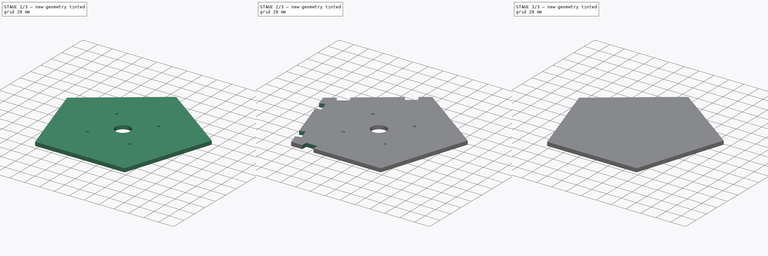
[diagram: build sequence overview — one tinted view per stage of 3, left to right]
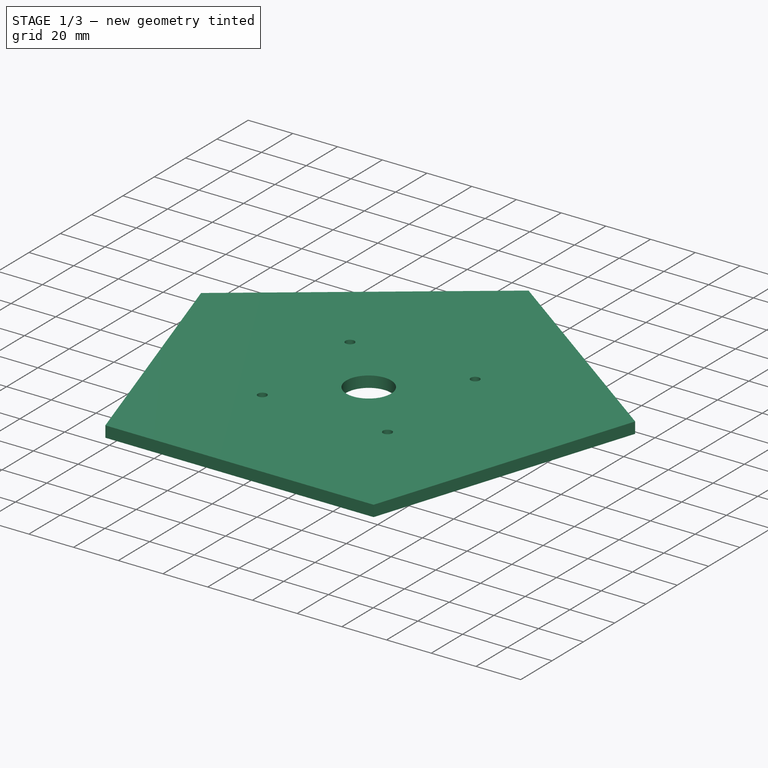
[diagram: stage 1 of 3 — iso view after this stage's code; geometry added in this stage tinted green]
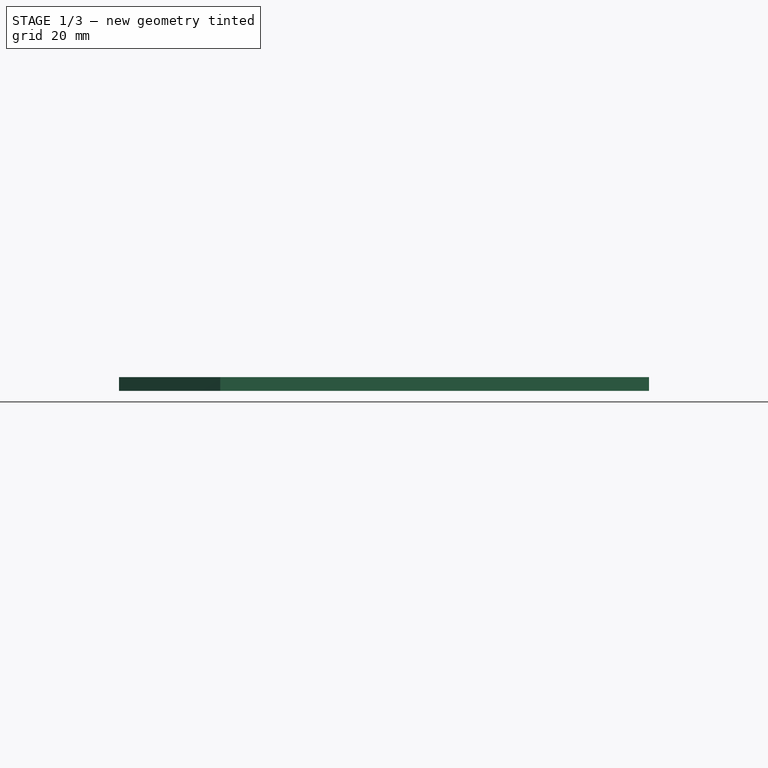
[diagram: stage 1 of 3 — front view after this stage's code; geometry added in this stage tinted green]
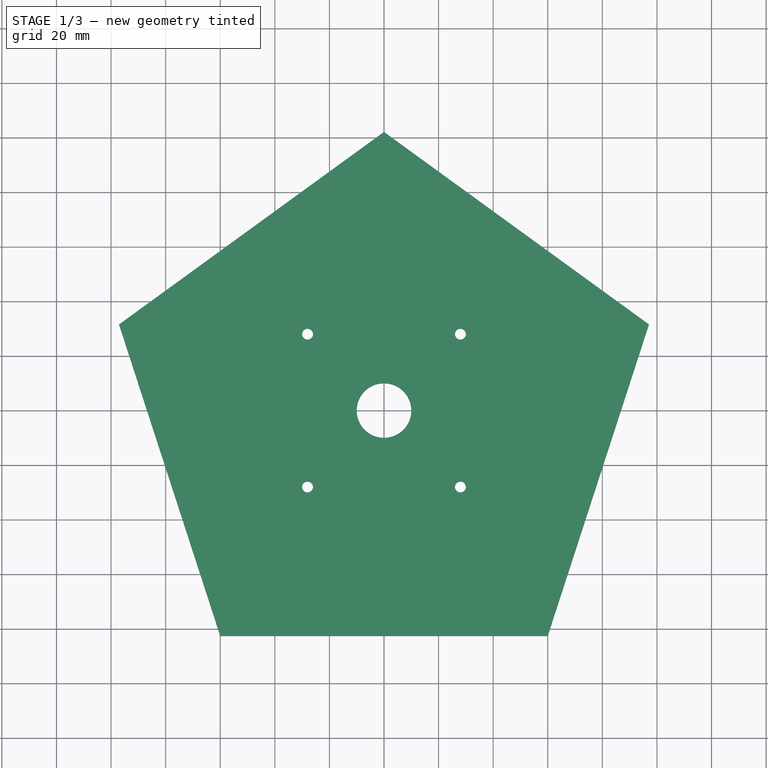
[diagram: stage 1 of 3 — top view after this stage's code; geometry added in this stage tinted green]
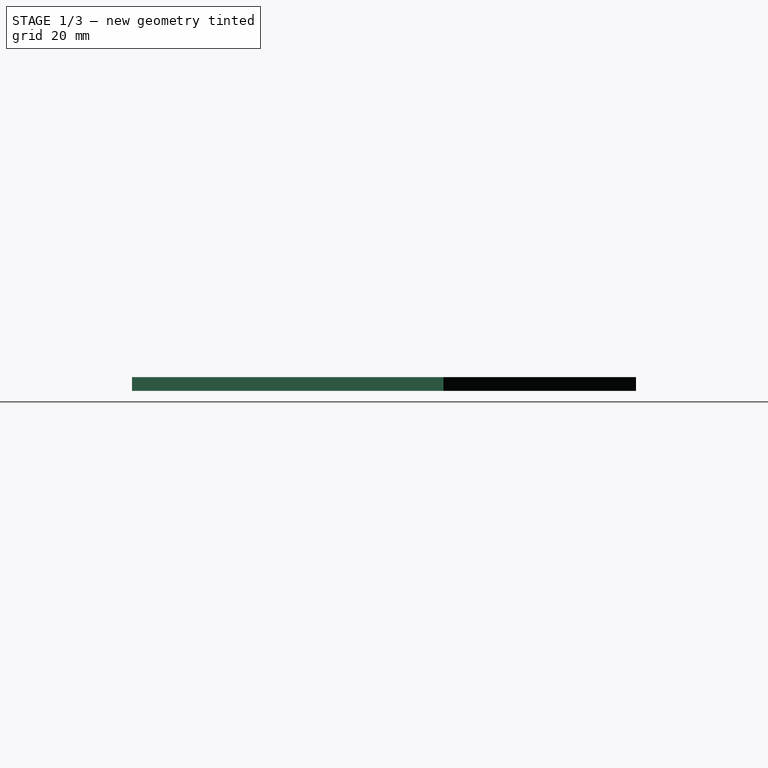
[diagram: stage 1 of 3 — right view after this stage's code; geometry added in this stage tinted green]
FCSTD DOCUMENT  (FreeCAD 0.15R4671 (Git))
Label: basV2
License: All rights reserved
LicenseURL: http://fr.wikipedia.org/wiki/<copyright redacted>
objects: Sketcher::SketchObject×5, PartDesign::Mirrored×3, PartDesign::Pocket×2, PartDesign::Pad×1, PartDesign::MultiTransform×1, App::MeasureDistance×1
note: 15 computed .brp shape members not serialized (recipe doc carries the construction recipe); baked Part::Feature solids carry a one-line shape summary decoded from their .brp

FEATURE [Sketcher::SketchObject] Sketch001  label="centerHole"
  Placement = pos=(0,0,5) rot=(0,0,1;0rad)
  Support = -> Pad [Face7]
  sketch-geometry (1):
    g0: Circle CenterX=0 CenterY=0 CenterZ=0 NormalX=0 NormalY=0 NormalZ=1 Radius=10
  constraints (2):
    c: Coincident(g0,g-1)
    c: Radius(g0) = 10
FEATURE [Sketcher::SketchObject] Sketch002  label="screwhole"
  Placement = pos=(0,0,5) rot=(0,0,1;0rad)
  sketch-geometry (1):
    g0: Circle CenterX=-28 CenterY=28 CenterZ=0 NormalX=0 NormalY=0 NormalZ=1 Radius=2
  constraints (3):
    c: Radius(g0) = 2
    c: DistanceX(g-1,g0) = -28
    c: DistanceY(g-1,g0) = 28
FEATURE [PartDesign::Pocket] Pocket001
  Length = 5
  Sketch = -> Sketch002
  Type = 1
FEATURE [PartDesign::Mirrored] Mirrored
  MirrorPlane = -> Sketch002 [V_Axis]
FEATURE [PartDesign::Mirrored] Mirrored001
  MirrorPlane = -> Sketch002 [H_Axis]
FEATURE [PartDesign::MultiTransform] MultiTransform  label="screwHoles"
  Originals = -> [Pocket001]
  Transformations = -> [Mirrored,Mirrored001]
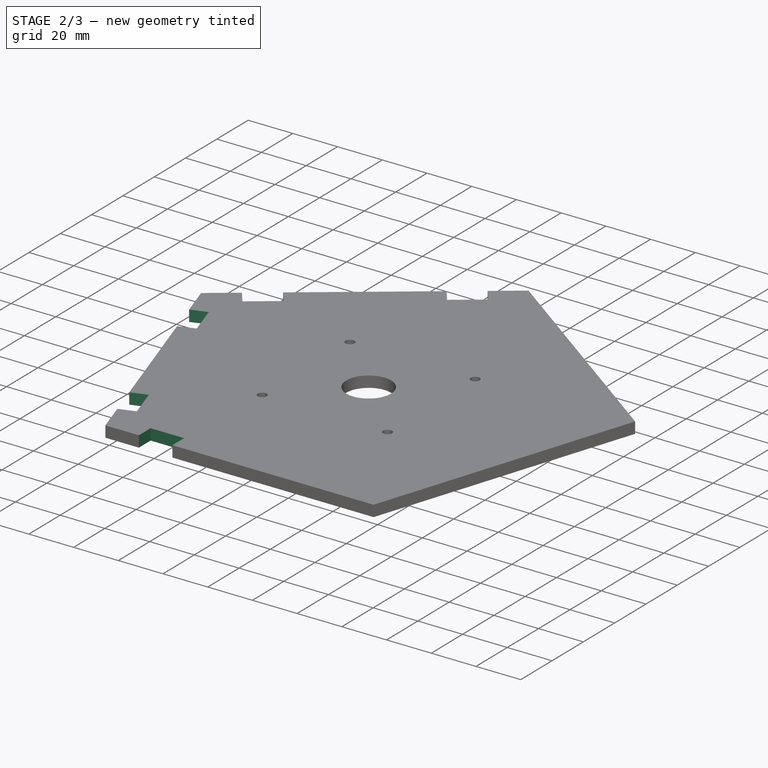
[diagram: stage 2 of 3 — iso view after this stage's code; geometry added in this stage tinted green]
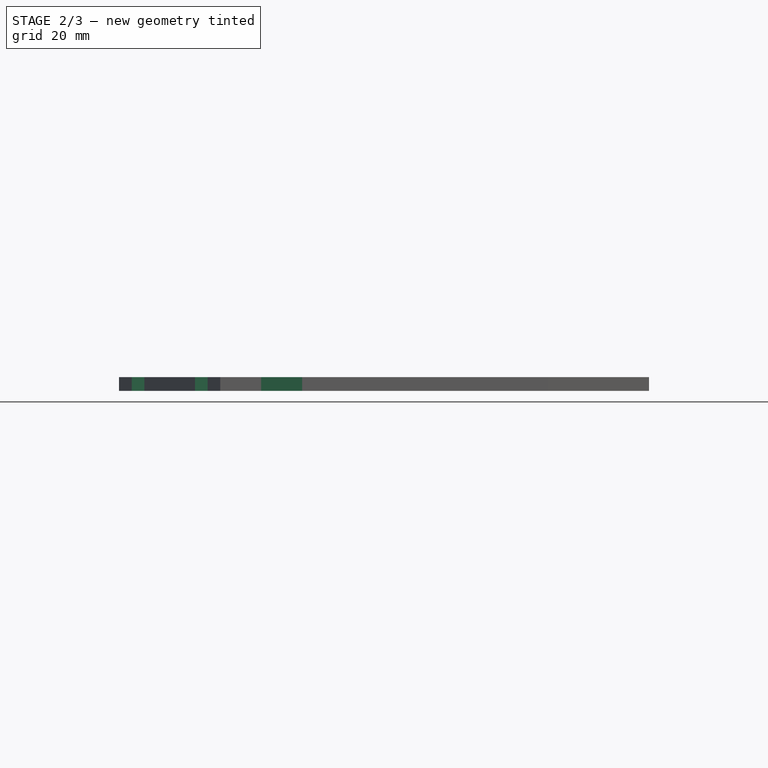
[diagram: stage 2 of 3 — front view after this stage's code; geometry added in this stage tinted green]
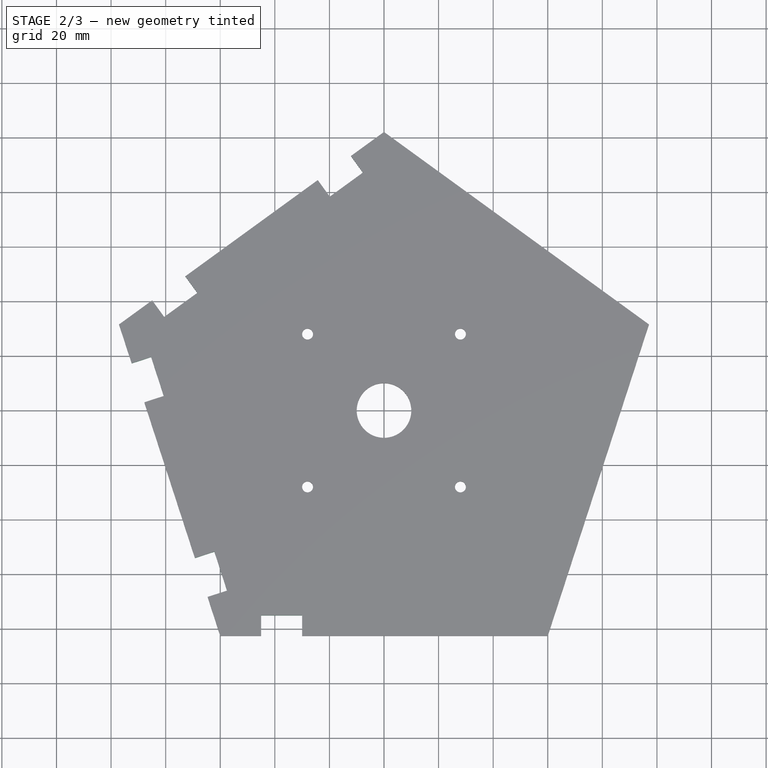
[diagram: stage 2 of 3 — top view after this stage's code; geometry added in this stage tinted green]
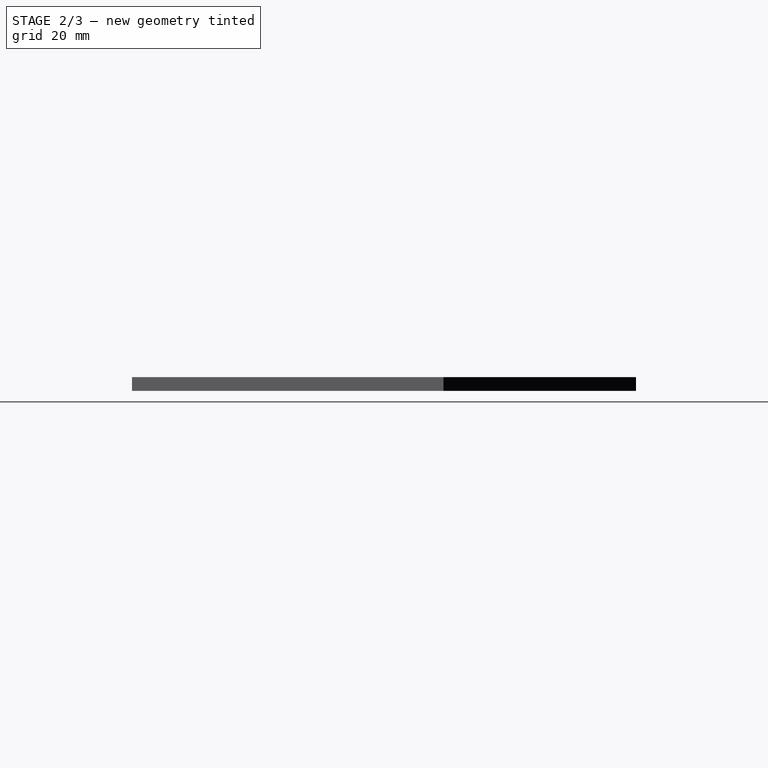
[diagram: stage 2 of 3 — right view after this stage's code; geometry added in this stage tinted green]
FEATURE [Sketcher::SketchObject] Sketch003
  ExternalGeometry = -> [MultiTransform]
  Placement = pos=(0,0,5) rot=(0,0,1;0rad)
  Support = -> MultiTransform [Face5]
  sketch-geometry (23):
    g0: LineSegment StartX=-84.9468 StartY=40.3606 StartZ=0 EndX=-72.8115 EndY=49.1774 EndZ=0
    g1: LineSegment StartX=-72.8115 StartY=49.1774 StartZ=0 EndX=-68.4031 EndY=43.1098 EndZ=0
    g2: LineSegment StartX=-68.4031 StartY=43.1098 StartZ=0 EndX=-80.5384 EndY=34.293 EndZ=0
    g3: LineSegment StartX=-80.5384 StartY=34.293 StartZ=0 EndX=-84.9468 EndY=40.3606 EndZ=0
    g4: LineSegment [constr] StartX=0 StartY=0 StartZ=0 EndX=-48.541 EndY=66.811 EndZ=0
    g5: LineSegment [constr] StartX=0 StartY=0 StartZ=0 EndX=-97.082 EndY=31.5439 EndZ=0
    g6: LineSegment [constr] StartX=0 StartY=0 StartZ=0 EndX=-60 EndY=-82.5829 EndZ=0
    g7: LineSegment StartX=-12.1353 StartY=93.2613 StartZ=0 EndX=-7.72687 EndY=87.1937 EndZ=0
    g8: LineSegment StartX=-7.72687 StartY=87.1937 StartZ=0 EndX=-19.8621 EndY=78.3769 EndZ=0
    g9: LineSegment StartX=-19.8621 StartY=78.3769 StartZ=0 EndX=-24.2705 EndY=84.4445 EndZ=0
    g10: LineSegment StartX=-12.1353 StartY=93.2613 StartZ=0 EndX=-24.2705 EndY=84.4445 EndZ=0
    g11: LineSegment StartX=-92.4468 StartY=17.278 StartZ=0 EndX=-85.3139 EndY=19.5956 EndZ=0
    g12: LineSegment StartX=-85.3139 StartY=19.5956 StartZ=0 EndX=-80.6786 EndY=5.3298 EndZ=0
    g13: LineSegment StartX=-80.6786 StartY=5.3298 StartZ=0 EndX=-87.8115 EndY=3.01217 EndZ=0
    g14: LineSegment StartX=-87.8115 StartY=3.01217 StartZ=0 EndX=-92.4468 EndY=17.278 EndZ=0
    g15: LineSegment StartX=-69.2705 StartY=-54.0512 StartZ=0 EndX=-62.1376 EndY=-51.7336 EndZ=0
    g16: LineSegment StartX=-62.1376 StartY=-51.7336 StartZ=0 EndX=-57.5023 EndY=-65.9994 EndZ=0
    g17: LineSegment StartX=-57.5023 StartY=-65.9994 StartZ=0 EndX=-64.6353 EndY=-68.3171 EndZ=0
    g18: LineSegment StartX=-64.6353 StartY=-68.3171 StartZ=0 EndX=-69.2705 EndY=-54.0512 EndZ=0
    g19: LineSegment StartX=-45 StartY=-82.5829 StartZ=0 EndX=-45 EndY=-75.0829 EndZ=0
    g20: LineSegment StartX=-45 StartY=-75.0829 StartZ=0 EndX=-30 EndY=-75.0829 EndZ=0
    g21: LineSegment StartX=-30 StartY=-75.0829 StartZ=0 EndX=-30 EndY=-82.5829 EndZ=0
    g22: LineSegment StartX=-30 StartY=-82.5829 StartZ=0 EndX=-45 EndY=-82.5829 EndZ=0
  constraints (67):
    c: Coincident(g0,g1)
    c: Coincident(g1,g2)
    c: Coincident(g2,g3)
    c: Coincident(g3,g0)
    c: Parallel(g0,g2)
    c: Parallel(g2,g-3)
    c: Perpendicular(g1,g0)
    c: Perpendicular(g3,g0)
    c: PointOnObject(g0,g-3)
    c: Distance(g2) = 15
    c: Distance(g3) = 7.5
    c: Distance(g-3,g0) = 15
    c: Perpendicular(g-3,g4)
    c: Coincident(g4,g-1)
    c: PointOnObject(g4,g-3)
    c: Coincident(g5,g-3)
    c: Coincident(g5,g-1)
    c: Coincident(g6,g-4)
    c: Coincident(g6,g-1)
    c: Coincident(g7,g8)
    c: Coincident(g8,g9)
    c: Parallel(g7,g9)
    c: Parallel(g8,g-3)
    c: PointOnObject(g7,g-3)
    c: Equal(g9,g7)
    c: Perpendicular(g8,g7)
    c: Equal(g8,g2)
    c: Equal(g9,g1)
    c: Distance(g-3,g7) = 15
    c: Coincident(g10,g7)
    c: Coincident(g9,g10)
    c: Coincident(g11,g12)
    c: Coincident(g12,g13)
    c: Coincident(g13,g14)
    c: Parallel(g12,g14)
    c: Parallel(g14,g-5)
    c: Parallel(g11,g13)
    c: Perpendicular(g12,g11)
    c: Equal(g12,g2)
    c: Equal(g11,g1)
    c: Coincident(g14,g11)
    c: PointOnObject(g11,g-5)
    c: Distance(g11,g5) = 15
    c: Coincident(g15,g16)
    c: Coincident(g16,g17)
    c: Coincident(g17,g18)
    c: Coincident(g18,g15)
    c: Parallel(g15,g17)
    c: Parallel(g16,g18)
    c: Parallel(g18,g-5)
    c: Perpendicular(g16,g17)
    c: Equal(g13,g15)
    c: Equal(g12,g16)
    c: PointOnObject(g17,g-5)
    c: Distance(g17,g6) = 15
    c: Vertical(g19)
    c: Coincident(g19,g20)
    c: Coincident(g20,g21)
    c: Vertical(g21)
    c: Coincident(g21,g22)
    c: Coincident(g22,g19)
    c: Horizontal(g20)
    c: Horizontal(g22)
    c: PointOnObject(g21,g-6)
    c: Equal(g19,g15)
    c: Equal(g20,g16)
    c: Distance(g6,g19) = 15
FEATURE [PartDesign::Pocket] Pocket002
  Length = 5
  Sketch = -> Sketch003
  Type = 0
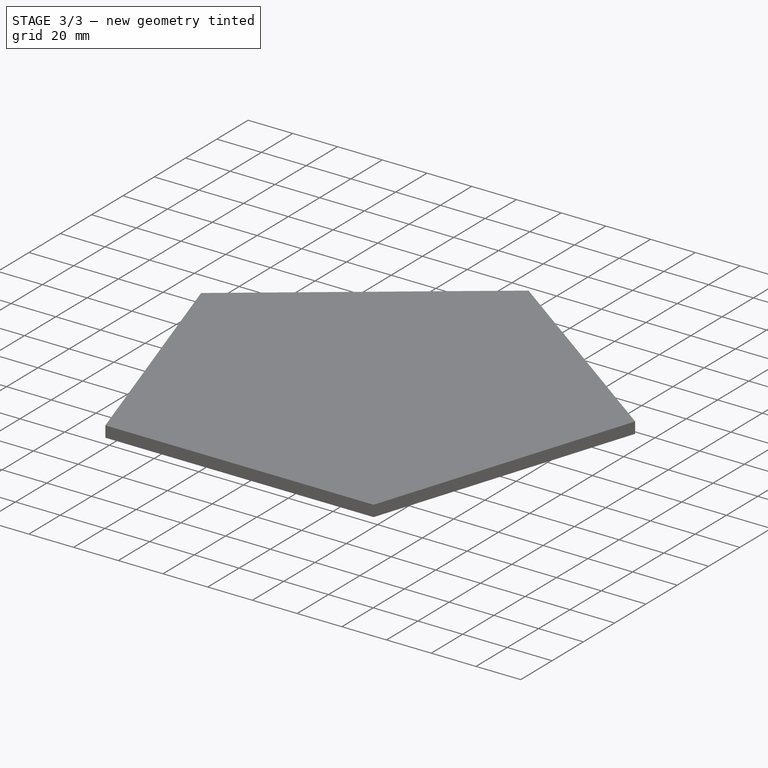
[diagram: stage 3 of 3 — iso view after this stage's code; geometry added in this stage tinted green]
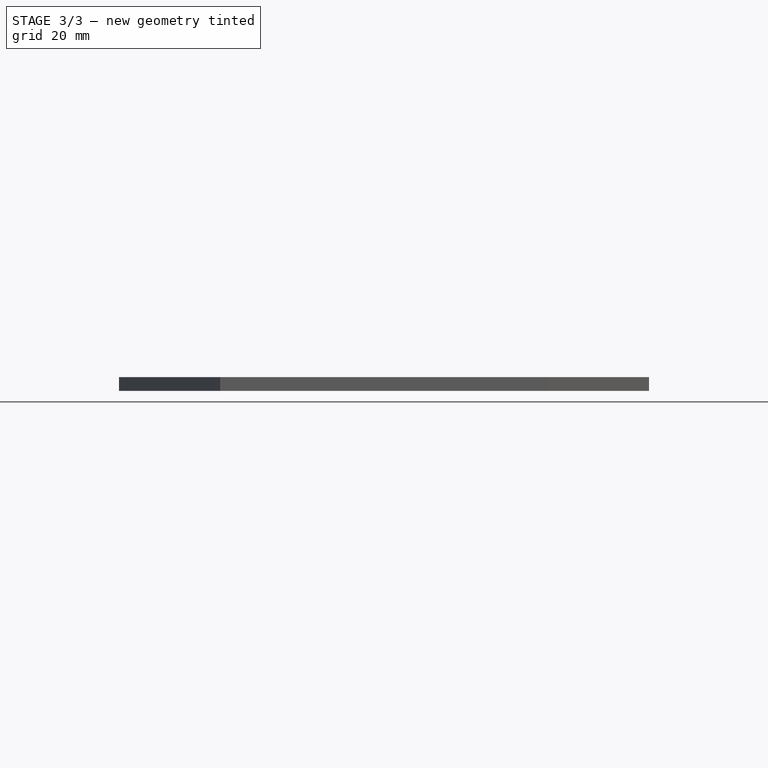
[diagram: stage 3 of 3 — front view after this stage's code; geometry added in this stage tinted green]
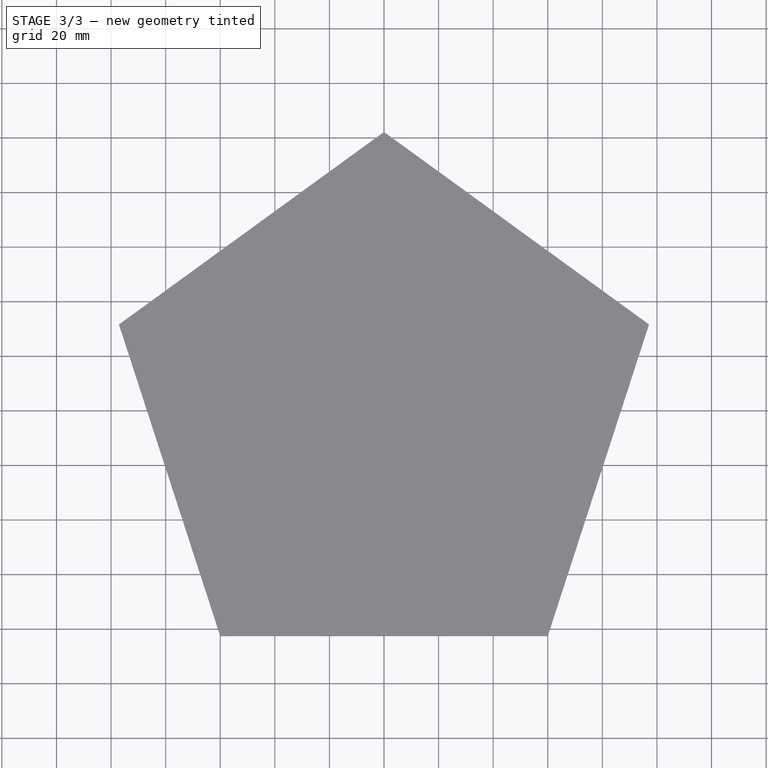
[diagram: stage 3 of 3 — top view after this stage's code; geometry added in this stage tinted green]
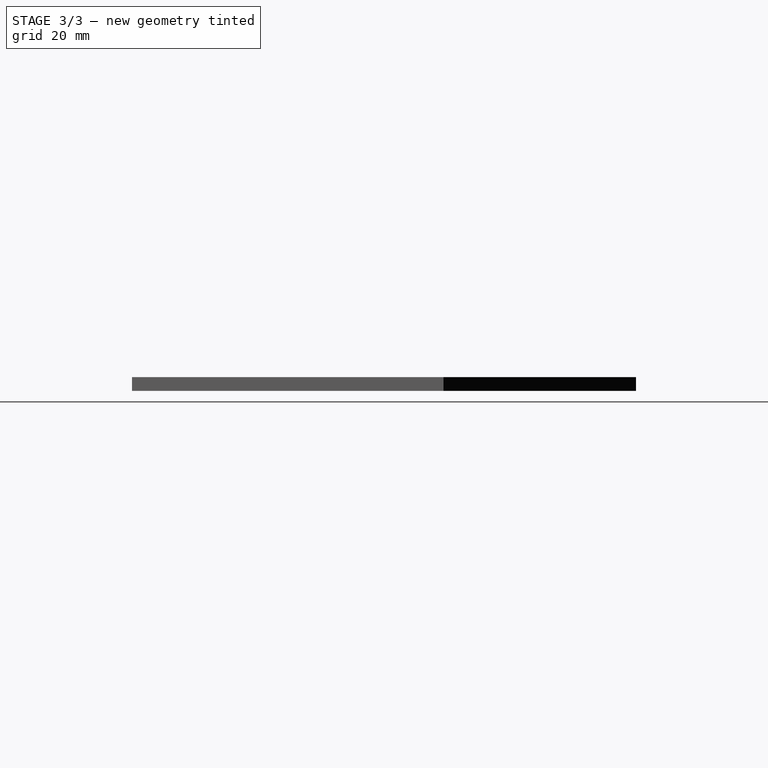
[diagram: stage 3 of 3 — right view after this stage's code; geometry added in this stage tinted green]
FEATURE [Sketcher::SketchObject] Sketch  label="pentagone"
  sketch-geometry (6):
    g0: LineSegment StartX=0 StartY=102.078 StartZ=0 EndX=-97.082 EndY=31.5439 EndZ=0
    g1: LineSegment StartX=-97.082 StartY=31.5439 StartZ=0 EndX=-60 EndY=-82.5829 EndZ=0
    g2: LineSegment StartX=-60 StartY=-82.5829 StartZ=0 EndX=60 EndY=-82.5829 EndZ=0
    g3: LineSegment StartX=60 StartY=-82.5829 StartZ=0 EndX=97.082 EndY=31.5439 EndZ=0
    g4: LineSegment StartX=97.082 StartY=31.5439 StartZ=0 EndX=0 EndY=102.078 EndZ=0
    g5: Circle [constr] CenterX=0 CenterY=0 CenterZ=0 NormalX=0 NormalY=0 NormalZ=1 Radius=102.078
  constraints (15):
    c: Coincident(g0,g1)
    c: Coincident(g1,g2)
    c: Coincident(g2,g3)
    c: Coincident(g3,g4)
    c: Coincident(g4,g0)
    c: Equal(g0, g1-g4) x4
    c: PointOnObject(g0,g5)
    c: PointOnObject(g1,g5)
    c: PointOnObject(g2,g5)
    c: PointOnObject(g3,g5)
    c: PointOnObject(g4,g5)
    c: Coincident(g2,g-1)
    c: Coincident(g-1,g5)
    c: Distance(g0) = 120
    c: PointOnObject(g0,g-2)
FEATURE [PartDesign::Pad] Pad  label="pentagonePad"
  Length = 5
  Length2 = 100
  Sketch = -> Sketch
  Type = 0
FEATURE [PartDesign::Mirrored] Mirrored002
  MirrorPlane = -> Sketch003 [V_Axis]
  Originals = -> [Pocket002]
FEATURE [App::MeasureDistance] Distance  label="Distance: 90.000"
  Distance = 90
  P1 = (-84.9468,40.3606,5)
  P2 = (-12.1353,93.2613,5)
FEATURE [Sketcher::SketchObject] Sketch004  label="brouillon_Sketch004"
  ExternalGeometry = -> [Mirrored002]
  Placement = pos=(0,0,5) rot=(0,0,1;0rad)
  Support = -> Mirrored002 [Face4]
  sketch-geometry (6):
    g0: LineSegment StartX=-7.72687 StartY=87.1937 StartZ=0 EndX=0 EndY=92.8076 EndZ=0
    g1: LineSegment StartX=7.72687 StartY=87.1937 StartZ=0 EndX=-4.40839 EndY=96.0105 EndZ=0
    g2: LineSegment StartX=-10.6658 StartY=91.2388 StartZ=0 EndX=-2.93893 EndY=96.8527 EndZ=0
    g3: LineSegment StartX=-2.93893 StartY=96.8527 StartZ=0 EndX=0 EndY=92.8076 EndZ=0
    g4: LineSegment StartX=10.6658 StartY=91.2388 StartZ=0 EndX=-1.46946 EndY=100.056 EndZ=0
    g5: LineSegment StartX=-1.46946 StartY=100.056 StartZ=0 EndX=-4.40839 EndY=96.0105 EndZ=0
  constraints (18):
    c: Coincident(g0,g-3)
    c: PointOnObject(g0,g-2)
    c: Parallel(g0,g-3)
    c: Coincident(g1,g-4)
    c: Parallel(g-4,g1)
    c: Distance(g1) = 15
    c: PointOnObject(g2,g-5)
    c: Parallel(g2,g0)
    c: Distance(g2,g0) = 5
    c: Equal(g0,g2)
    c: Coincident(g3,g2)
    c: Coincident(g3,g0)
    c: PointOnObject(g4,g-6)
    c: Parallel(g4,g1)
    c: Equal(g1,g4)
    c: Distance(g4,g1) = 5
    c: Coincident(g5,g4)
    c: Coincident(g5,g1)
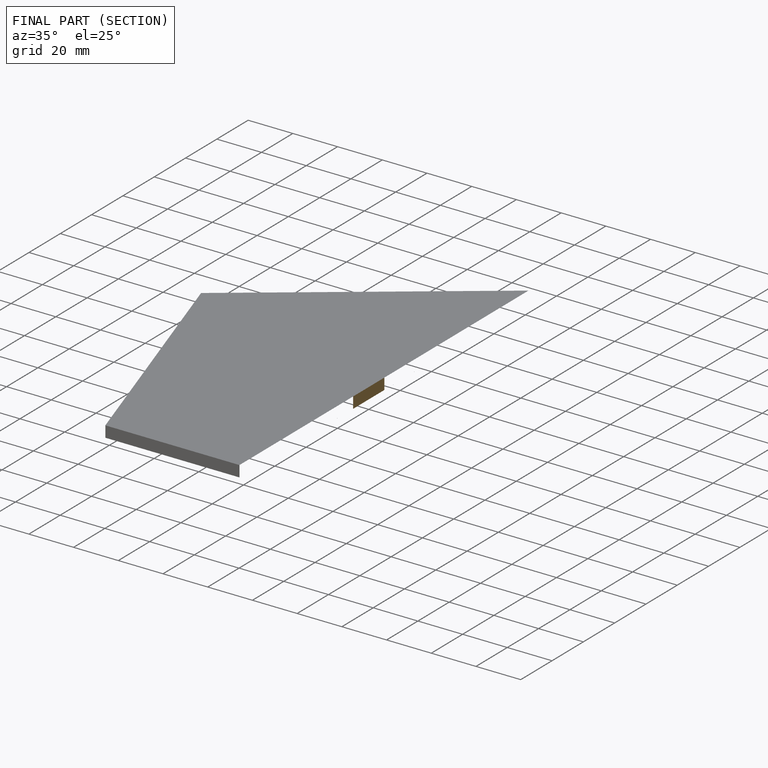
[diagram: finished part — half-section view (interior)]
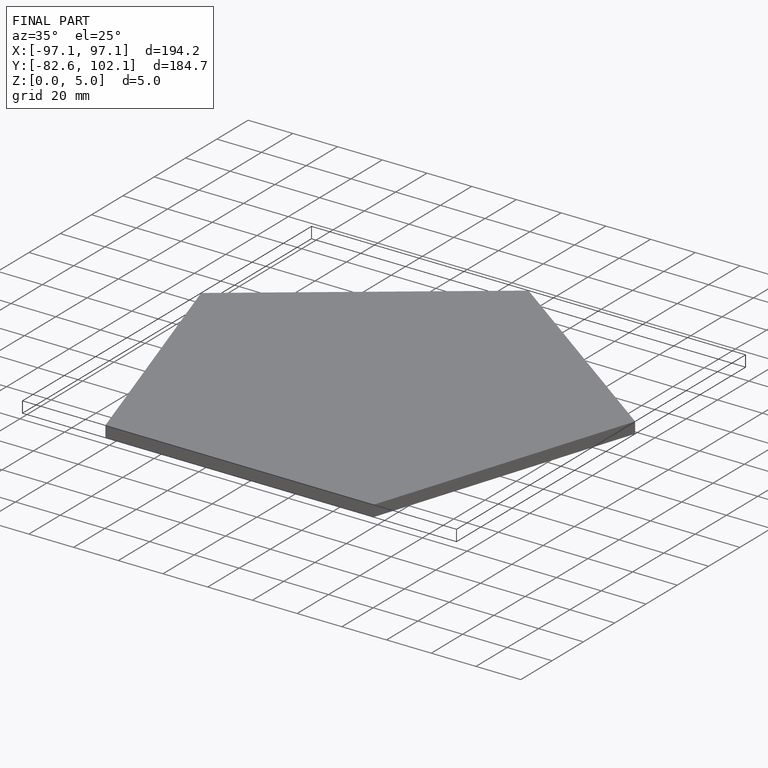
[diagram: finished part — iso view with bounding-box wireframe]
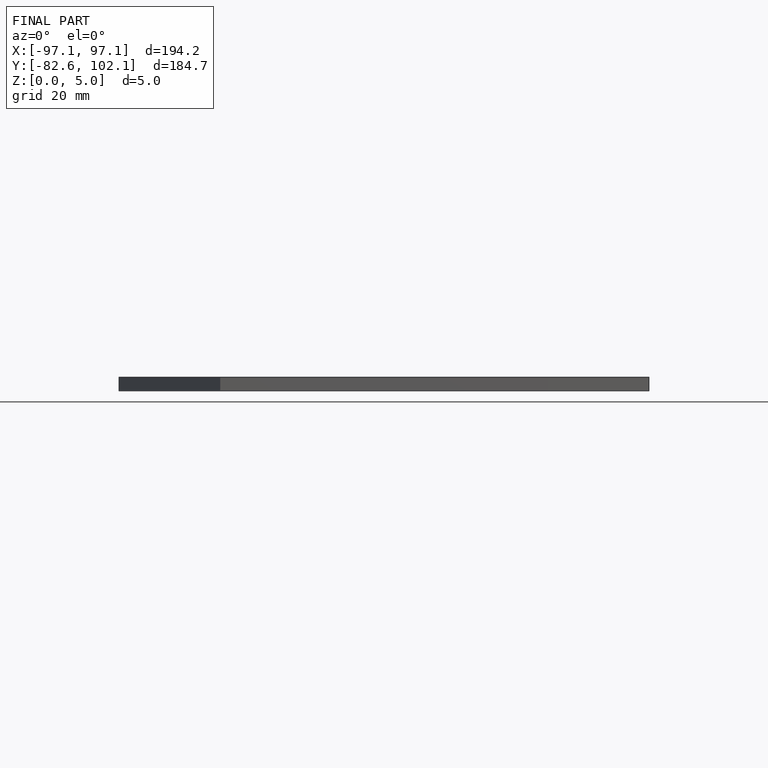
[diagram: finished part — front view with bounding-box wireframe]
